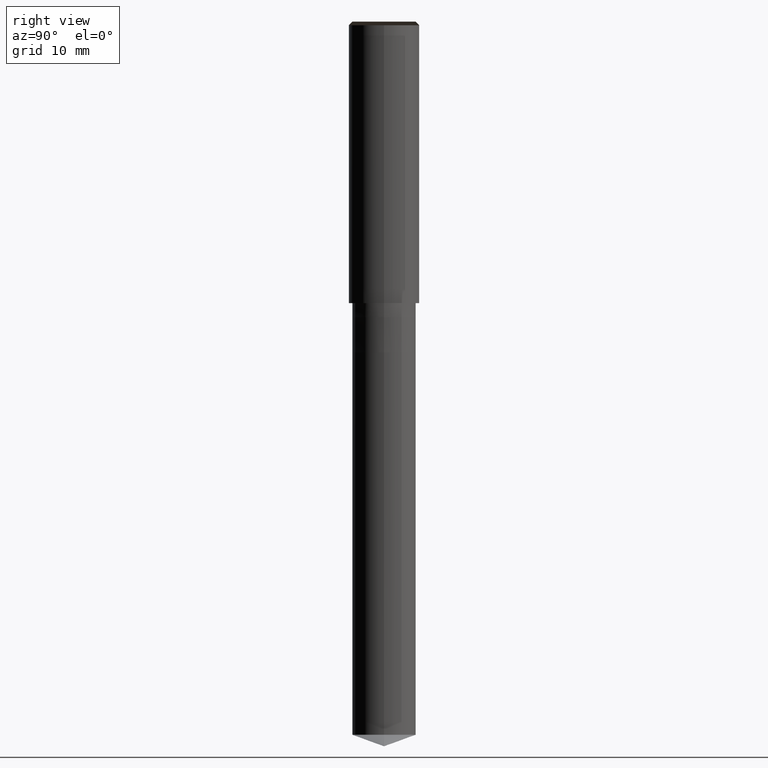
[diagram: clean part render]
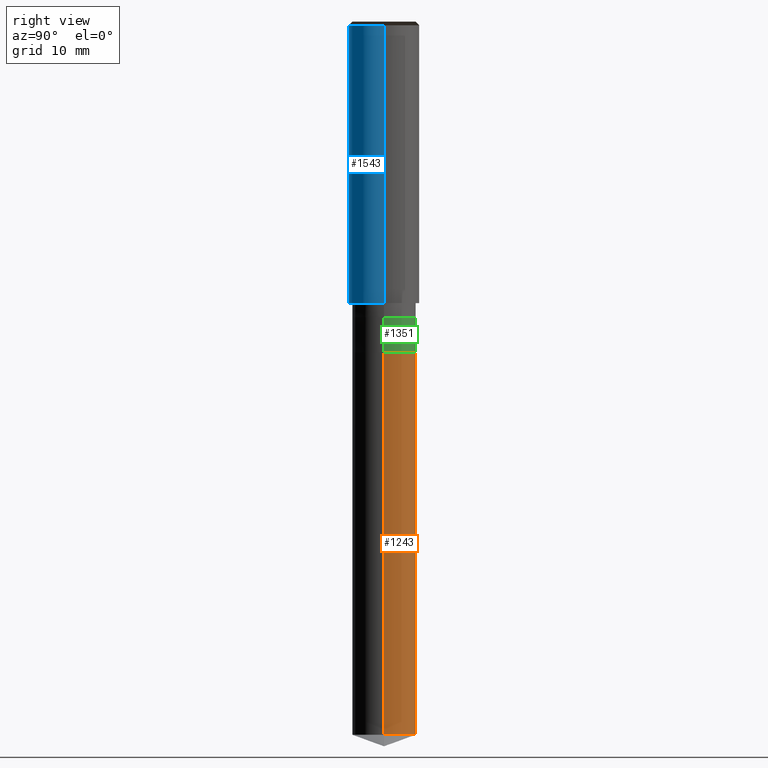
[diagram: same view with three faces highlighted in distinct colors, each labeled with its STEP entity id]
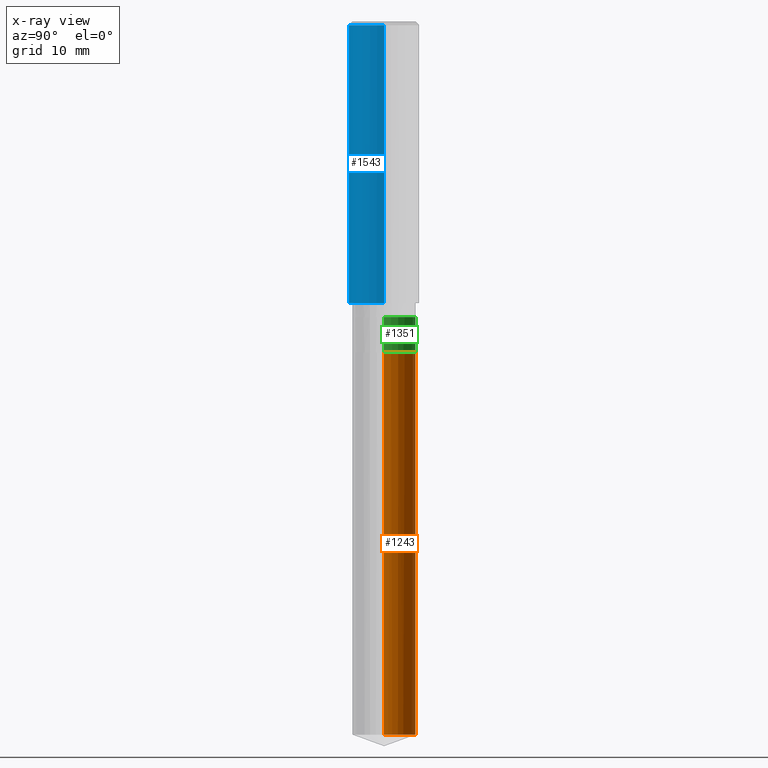
[diagram: x-ray of the same camera — body ghosted, the three highlighted faces saturated]
A machine part, right view with three faces highlighted in distinct colors.
The next image is the same camera in x-ray (body ghosted, the three faces saturated) — at least one of them is partly hidden behind the body in this view.
Their STEP definitions:

[orange] entity #1243 — the highlighted face is a freeform B-spline surface patch.
#1145=CARTESIAN_POINT('',(4.5,0.0,-61.362133945802));
#1146=CARTESIAN_POINT('',(4.5,4.5,-61.362133945802));
#1147=CARTESIAN_POINT('',(0.0,4.5,-61.362133945802));
#1148=CARTESIAN_POINT('',(-4.5,4.5,-61.362133945802));
#1149=CARTESIAN_POINT('',(-4.5,0.0,-61.362133945802));
#1150=CARTESIAN_POINT('',(4.5,0.0,-7.0));
#1151=CARTESIAN_POINT('',(4.5,4.5,-7.0));
#1152=CARTESIAN_POINT('',(0.0,4.5,-7.0));
#1153=CARTESIAN_POINT('',(-4.5,4.5,-7.0));
#1154=CARTESIAN_POINT('',(-4.5,0.0,-7.0));
#1224=(
BOUNDED_SURFACE()
B_SPLINE_SURFACE(1,2,(
(#1145,#1146,#1147,#1148,#1149),
(#1150,#1151,#1152,#1153,#1154)
), .UNSPECIFIED.,.F.,.F.,.F.)
B_SPLINE_SURFACE_WITH_KNOTS((2,2),(3,2,3),(
0.0,1.0),(
0.0,0.5,1.0), .UNSPECIFIED.)
GEOMETRIC_REPRESENTATION_ITEM()
RATIONAL_B_SPLINE_SURFACE(((1.0,0.707106781187,1.0,0.707106781187,1.0),
(1.0,0.707106781187,1.0,0.707106781187,1.0)
))
REPRESENTATION_ITEM('')
SURFACE()
);
#1225=(
BOUNDED_CURVE()
B_SPLINE_CURVE(2,(#1149,#1148,#1147,#1146,#1145),.UNSPECIFIED.,.F.,.F.)
B_SPLINE_CURVE_WITH_KNOTS((3,2,3),
(0.0,0.5,1.0),.UNSPECIFIED.)
CURVE()
GEOMETRIC_REPRESENTATION_ITEM()
RATIONAL_B_SPLINE_CURVE((1.0,0.707106781187,1.0,0.707106781187,1.0))
REPRESENTATION_ITEM('')
);
#1226=(
BOUNDED_CURVE()
B_SPLINE_CURVE(1,(#1145,#1150),.UNSPECIFIED.,.F.,.F.)
B_SPLINE_CURVE_WITH_KNOTS((2,2),
(0.0,1.0),.UNSPECIFIED.)
CURVE()
GEOMETRIC_REPRESENTATION_ITEM()
RATIONAL_B_SPLINE_CURVE((1.0,1.0))
REPRESENTATION_ITEM('')
);
#1227=(
BOUNDED_CURVE()
B_SPLINE_CURVE(2,(#1150,#1151,#1152,#1153,#1154),.UNSPECIFIED.,.F.,.F.)
B_SPLINE_CURVE_WITH_KNOTS((3,2,3),
(0.0,0.5,1.0),.UNSPECIFIED.)
CURVE()
GEOMETRIC_REPRESENTATION_ITEM()
RATIONAL_B_SPLINE_CURVE((1.0,0.707106781187,1.0,0.707106781187,1.0))
REPRESENTATION_ITEM('')
);
#1228=(
BOUNDED_CURVE()
B_SPLINE_CURVE(1,(#1154,#1149),.UNSPECIFIED.,.F.,.F.)
B_SPLINE_CURVE_WITH_KNOTS((2,2),
(0.0,1.0),.UNSPECIFIED.)
CURVE()
GEOMETRIC_REPRESENTATION_ITEM()
RATIONAL_B_SPLINE_CURVE((1.0,1.0))
REPRESENTATION_ITEM('')
);
#1229=VERTEX_POINT('',#1145);
#1230=VERTEX_POINT('',#1149);
#1231=VERTEX_POINT('',#1150);
#1232=VERTEX_POINT('',#1154);
#1233=EDGE_CURVE('',#1230,#1229,#1225,.T.);
#1234=EDGE_CURVE('',#1229,#1231,#1226,.T.);
#1235=EDGE_CURVE('',#1231,#1232,#1227,.T.);
#1236=EDGE_CURVE('',#1232,#1230,#1228,.T.);
#1237=ORIENTED_EDGE('',*,*,#1233,.T.);
#1238=ORIENTED_EDGE('',*,*,#1234,.T.);
#1239=ORIENTED_EDGE('',*,*,#1235,.T.);
#1240=ORIENTED_EDGE('',*,*,#1236,.T.);
#1241=EDGE_LOOP('',(#1237,#1238,#1239,#1240));
#1242=FACE_OUTER_BOUND('',#1241,.T.);
#1243=ADVANCED_FACE('',(#1242),#1224,.T.);

[blue] entity #1543 — the highlighted face is a freeform B-spline surface patch.
#1172=CARTESIAN_POINT('',(5.0,0.0,0.0));
#1176=CARTESIAN_POINT('',(-5.0,0.0,0.0));
#1177=CARTESIAN_POINT('',(5.0,0.0,39.5));
#1181=CARTESIAN_POINT('',(-5.0,0.0,39.5));
#1194=CARTESIAN_POINT('',(-5.0,-5.0,0.0));
#1195=CARTESIAN_POINT('',(0.0,-5.0,0.0));
#1196=CARTESIAN_POINT('',(5.0,-5.0,0.0));
#1197=CARTESIAN_POINT('',(-5.0,-5.0,39.5));
#1198=CARTESIAN_POINT('',(0.0,-5.0,39.5));
#1199=CARTESIAN_POINT('',(5.0,-5.0,39.5));
#1524=(
BOUNDED_SURFACE()
B_SPLINE_SURFACE(1,2,(
(#1176,#1194,#1195,#1196,#1172),
(#1181,#1197,#1198,#1199,#1177)
), .UNSPECIFIED.,.F.,.F.,.F.)
B_SPLINE_SURFACE_WITH_KNOTS((2,2),(3,2,3),(
0.0,1.0),(
0.0,0.5,1.0), .UNSPECIFIED.)
GEOMETRIC_REPRESENTATION_ITEM()
RATIONAL_B_SPLINE_SURFACE(((1.0,0.707106781187,1.0,0.707106781187,1.0),
(1.0,0.707106781187,1.0,0.707106781187,1.0)
))
REPRESENTATION_ITEM('')
SURFACE()
);
#1525=(
BOUNDED_CURVE()
B_SPLINE_CURVE(2,(#1172,#1196,#1195,#1194,#1176),.UNSPECIFIED.,.F.,.F.)
B_SPLINE_CURVE_WITH_KNOTS((3,2,3),
(0.0,0.5,1.0),.UNSPECIFIED.)
CURVE()
GEOMETRIC_REPRESENTATION_ITEM()
RATIONAL_B_SPLINE_CURVE((1.0,0.707106781187,1.0,0.707106781187,1.0))
REPRESENTATION_ITEM('')
);
#1526=(
BOUNDED_CURVE()
B_SPLINE_CURVE(1,(#1176,#1181),.UNSPECIFIED.,.F.,.F.)
B_SPLINE_CURVE_WITH_KNOTS((2,2),
(0.0,1.0),.UNSPECIFIED.)
CURVE()
GEOMETRIC_REPRESENTATION_ITEM()
RATIONAL_B_SPLINE_CURVE((1.0,1.0))
REPRESENTATION_ITEM('')
);
#1527=(
BOUNDED_CURVE()
B_SPLINE_CURVE(2,(#1181,#1197,#1198,#1199,#1177),.UNSPECIFIED.,.F.,.F.)
B_SPLINE_CURVE_WITH_KNOTS((3,2,3),
(0.0,0.5,1.0),.UNSPECIFIED.)
CURVE()
GEOMETRIC_REPRESENTATION_ITEM()
RATIONAL_B_SPLINE_CURVE((1.0,0.707106781187,1.0,0.707106781187,1.0))
REPRESENTATION_ITEM('')
);
#1528=(
BOUNDED_CURVE()
B_SPLINE_CURVE(1,(#1177,#1172),.UNSPECIFIED.,.F.,.F.)
B_SPLINE_CURVE_WITH_KNOTS((2,2),
(0.0,1.0),.UNSPECIFIED.)
CURVE()
GEOMETRIC_REPRESENTATION_ITEM()
RATIONAL_B_SPLINE_CURVE((1.0,1.0))
REPRESENTATION_ITEM('')
);
#1529=VERTEX_POINT('',#1172);
#1530=VERTEX_POINT('',#1176);
#1531=VERTEX_POINT('',#1177);
#1532=VERTEX_POINT('',#1181);
#1533=EDGE_CURVE('',#1529,#1530,#1525,.T.);
#1534=EDGE_CURVE('',#1530,#1532,#1526,.T.);
#1535=EDGE_CURVE('',#1532,#1531,#1527,.T.);
#1536=EDGE_CURVE('',#1531,#1529,#1528,.T.);
#1537=ORIENTED_EDGE('',*,*,#1533,.T.);
#1538=ORIENTED_EDGE('',*,*,#1534,.T.);
#1539=ORIENTED_EDGE('',*,*,#1535,.T.);
#1540=ORIENTED_EDGE('',*,*,#1536,.T.);
#1541=EDGE_LOOP('',(#1537,#1538,#1539,#1540));
#1542=FACE_OUTER_BOUND('',#1541,.T.);
#1543=ADVANCED_FACE('',(#1542),#1524,.T.);

[green] entity #1351 — the highlighted face is a freeform B-spline surface patch.
#1150=CARTESIAN_POINT('',(4.5,0.0,-7.0));
#1151=CARTESIAN_POINT('',(4.5,4.5,-7.0));
#1152=CARTESIAN_POINT('',(0.0,4.5,-7.0));
#1153=CARTESIAN_POINT('',(-4.5,4.5,-7.0));
#1154=CARTESIAN_POINT('',(-4.5,0.0,-7.0));
#1162=CARTESIAN_POINT('',(4.5,0.0,-2.0));
#1163=CARTESIAN_POINT('',(4.5,4.5,-2.0));
#1164=CARTESIAN_POINT('',(0.0,4.5,-2.0));
#1165=CARTESIAN_POINT('',(-4.5,4.5,-2.0));
#1166=CARTESIAN_POINT('',(-4.5,0.0,-2.0));
#1332=(
BOUNDED_SURFACE()
B_SPLINE_SURFACE(1,2,(
(#1150,#1151,#1152,#1153,#1154),
(#1162,#1163,#1164,#1165,#1166)
), .UNSPECIFIED.,.F.,.F.,.F.)
B_SPLINE_SURFACE_WITH_KNOTS((2,2),(3,2,3),(
0.0,1.0),(
0.0,0.5,1.0), .UNSPECIFIED.)
GEOMETRIC_REPRESENTATION_ITEM()
RATIONAL_B_SPLINE_SURFACE(((1.0,0.707106781187,1.0,0.707106781187,1.0),
(1.0,0.707106781187,1.0,0.707106781187,1.0)
))
REPRESENTATION_ITEM('')
SURFACE()
);
#1333=(
BOUNDED_CURVE()
B_SPLINE_CURVE(2,(#1154,#1153,#1152,#1151,#1150),.UNSPECIFIED.,.F.,.F.)
B_SPLINE_CURVE_WITH_KNOTS((3,2,3),
(0.0,0.5,1.0),.UNSPECIFIED.)
CURVE()
GEOMETRIC_REPRESENTATION_ITEM()
RATIONAL_B_SPLINE_CURVE((1.0,0.707106781187,1.0,0.707106781187,1.0))
REPRESENTATION_ITEM('')
);
#1334=(
BOUNDED_CURVE()
B_SPLINE_CURVE(1,(#1150,#1162),.UNSPECIFIED.,.F.,.F.)
B_SPLINE_CURVE_WITH_KNOTS((2,2),
(0.0,1.0),.UNSPECIFIED.)
CURVE()
GEOMETRIC_REPRESENTATION_ITEM()
RATIONAL_B_SPLINE_CURVE((1.0,1.0))
REPRESENTATION_ITEM('')
);
#1335=(
BOUNDED_CURVE()
B_SPLINE_CURVE(2,(#1162,#1163,#1164,#1165,#1166),.UNSPECIFIED.,.F.,.F.)
B_SPLINE_CURVE_WITH_KNOTS((3,2,3),
(0.0,0.5,1.0),.UNSPECIFIED.)
CURVE()
GEOMETRIC_REPRESENTATION_ITEM()
RATIONAL_B_SPLINE_CURVE((1.0,0.707106781187,1.0,0.707106781187,1.0))
REPRESENTATION_ITEM('')
);
#1336=(
BOUNDED_CURVE()
B_SPLINE_CURVE(1,(#1166,#1154),.UNSPECIFIED.,.F.,.F.)
B_SPLINE_CURVE_WITH_KNOTS((2,2),
(0.0,1.0),.UNSPECIFIED.)
CURVE()
GEOMETRIC_REPRESENTATION_ITEM()
RATIONAL_B_SPLINE_CURVE((1.0,1.0))
REPRESENTATION_ITEM('')
);
#1337=VERTEX_POINT('',#1150);
#1338=VERTEX_POINT('',#1154);
#1339=VERTEX_POINT('',#1162);
#1340=VERTEX_POINT('',#1166);
#1341=EDGE_CURVE('',#1338,#1337,#1333,.T.);
#1342=EDGE_CURVE('',#1337,#1339,#1334,.T.);
#1343=EDGE_CURVE('',#1339,#1340,#1335,.T.);
#1344=EDGE_CURVE('',#1340,#1338,#1336,.T.);
#1345=ORIENTED_EDGE('',*,*,#1341,.T.);
#1346=ORIENTED_EDGE('',*,*,#1342,.T.);
#1347=ORIENTED_EDGE('',*,*,#1343,.T.);
#1348=ORIENTED_EDGE('',*,*,#1344,.T.);
#1349=EDGE_LOOP('',(#1345,#1346,#1347,#1348));
#1350=FACE_OUTER_BOUND('',#1349,.T.);
#1351=ADVANCED_FACE('',(#1350),#1332,.T.);